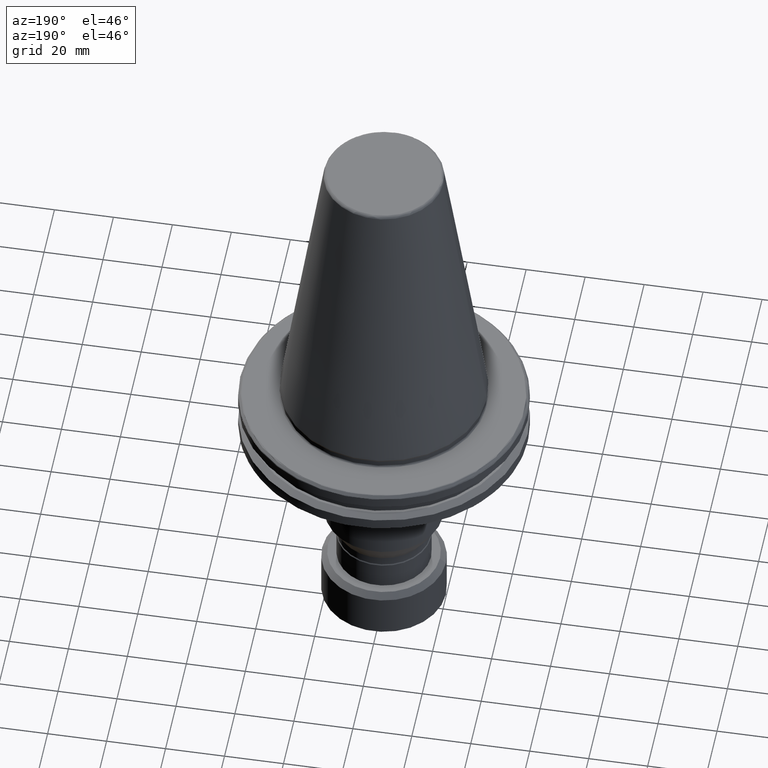
[diagram: clean part render]
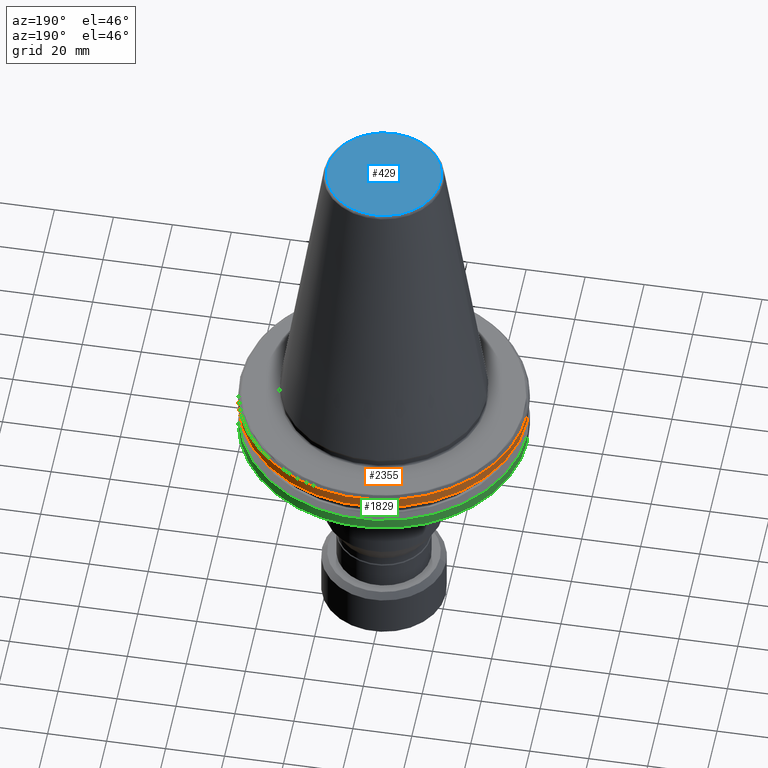
[diagram: same view with three faces highlighted in distinct colors, each labeled with its STEP entity id]
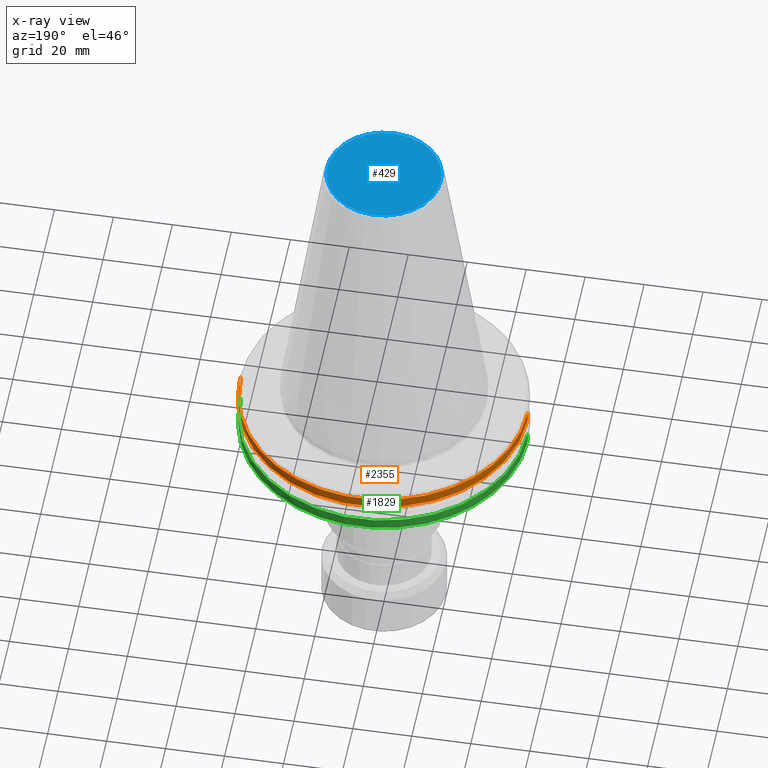
[diagram: x-ray of the same camera — body ghosted, the three highlighted faces saturated]
A machine part, auxiliary view with three faces highlighted in distinct colors.
The next image is the same camera in x-ray (body ghosted, the three faces saturated) — at least one of them is partly hidden behind the body in this view.
Their STEP definitions:

[orange] entity #2355 — the highlighted cylindrical surface (partial cylindrical patch) has radius 48.75 mm, axis along (0, 0, 1).
#78 = CARTESIAN_POINT ( 'NONE',  ( 13.39707817141273200, 46.87302845420867900, -4.365685424949238500 ) ) ;
#108 = DIRECTION ( 'NONE',  ( 0.0000000000000000000, 0.0000000000000000000, 1.000000000000000000 ) ) ;
#245 = VECTOR ( 'NONE', #494, 1000.000000000000000 ) ;
#297 = EDGE_CURVE ( 'NONE', #596, #1153, #754, .T. ) ;
#340 = EDGE_CURVE ( 'NONE', #1277, #2088, #2883, .T. ) ;
#342 = ORIENTED_EDGE ( 'NONE', *, *, #1901, .T. ) ;
#367 = EDGE_CURVE ( 'NONE', #1153, #2088, #3125, .T. ) ;
#425 = CARTESIAN_POINT ( 'NONE',  ( 0.0000000000000000000, 0.0000000000000000000, -4.365685424949236700 ) ) ;
#476 = DIRECTION ( 'NONE',  ( 1.000000000000000000, 0.0000000000000000000, 0.0000000000000000000 ) ) ;
#494 = DIRECTION ( 'NONE',  ( 0.0000000000000000000, 0.0000000000000000000, 1.000000000000000000 ) ) ;
#567 = EDGE_CURVE ( 'NONE', #1582, #596, #1555, .T. ) ;
#596 = VERTEX_POINT ( 'NONE', #2584 ) ;
#605 = LINE ( 'NONE', #918, #2829 ) ;
#702 = DIRECTION ( 'NONE',  ( 1.000000000000000000, 0.0000000000000000000, 0.0000000000000000000 ) ) ;
#725 = AXIS2_PLACEMENT_3D ( 'NONE', #874, #2746, #1161 ) ;
#754 = CIRCLE ( 'NONE', #1584, 48.75000000000000000 ) ;
#806 = CARTESIAN_POINT ( 'NONE',  ( 0.0000000000000000000, 0.0000000000000000000, 109.4760732604896600 ) ) ;
#823 = AXIS2_PLACEMENT_3D ( 'NONE', #425, #2328, #702 ) ;
#874 = CARTESIAN_POINT ( 'NONE',  ( 0.0000000000000000000, 0.0000000000000000000, -7.852404735808352000 ) ) ;
#903 = CARTESIAN_POINT ( 'NONE',  ( 48.75000000000000000, 0.0000000000000000000, -7.852404735808352000 ) ) ;
#918 = CARTESIAN_POINT ( 'NONE',  ( -48.75000000000000000, 5.970153145843347100E-015, 109.4760732604896600 ) ) ;
#1027 = ORIENTED_EDGE ( 'NONE', *, *, #367, .F. ) ;
#1147 = ORIENTED_EDGE ( 'NONE', *, *, #1504, .F. ) ;
#1153 = VERTEX_POINT ( 'NONE', #78 ) ;
#1161 = DIRECTION ( 'NONE',  ( 1.000000000000000000, 0.0000000000000000000, 0.0000000000000000000 ) ) ;
#1181 = CYLINDRICAL_SURFACE ( 'NONE', #2228, 48.75000000000000000 ) ;
#1257 = CIRCLE ( 'NONE', #725, 48.75000000000000000 ) ;
#1277 = VERTEX_POINT ( 'NONE', #2383 ) ;
#1309 = ORIENTED_EDGE ( 'NONE', *, *, #567, .F. ) ;
#1340 = FACE_OUTER_BOUND ( 'NONE', #2188, .T. ) ;
#1504 = EDGE_CURVE ( 'NONE', #2286, #1582, #1257, .T. ) ;
#1555 = LINE ( 'NONE', #2385, #245 ) ;
#1582 = VERTEX_POINT ( 'NONE', #903 ) ;
#1584 = AXIS2_PLACEMENT_3D ( 'NONE', #2241, #2255, #2023 ) ;
#1760 = AXIS2_PLACEMENT_3D ( 'NONE', #2277, #2268, #476 ) ;
#1901 = EDGE_CURVE ( 'NONE', #2286, #1277, #605, .T. ) ;
#2023 = DIRECTION ( 'NONE',  ( 1.000000000000000000, 0.0000000000000000000, 0.0000000000000000000 ) ) ;
#2046 = CARTESIAN_POINT ( 'NONE',  ( -48.75000000000000000, 5.970153145843347100E-015, -7.852404735808352000 ) ) ;
#2088 = VERTEX_POINT ( 'NONE', #2837 ) ;
#2188 = EDGE_LOOP ( 'NONE', ( #1147, #342, #2729, #1027, #3248, #1309 ) ) ;
#2228 = AXIS2_PLACEMENT_3D ( 'NONE', #806, #3200, #2426 ) ;
#2241 = CARTESIAN_POINT ( 'NONE',  ( 0.0000000000000000000, 0.0000000000000000000, -4.365685424949240300 ) ) ;
#2255 = DIRECTION ( 'NONE',  ( 0.0000000000000000000, 0.0000000000000000000, 1.000000000000000000 ) ) ;
#2268 = DIRECTION ( 'NONE',  ( -0.0000000000000000000, -0.0000000000000000000, -1.000000000000000000 ) ) ;
#2277 = CARTESIAN_POINT ( 'NONE',  ( 0.0000000000000000000, 0.0000000000000000000, -4.365685424949236700 ) ) ;
#2286 = VERTEX_POINT ( 'NONE', #2046 ) ;
#2328 = DIRECTION ( 'NONE',  ( -0.0000000000000000000, -0.0000000000000000000, 1.000000000000000000 ) ) ;
#2355 = ADVANCED_FACE ( 'NONE', ( #1340 ), #1181, .T. ) ;
#2383 = CARTESIAN_POINT ( 'NONE',  ( -48.75000000000000000, 5.970153145843347100E-015, -4.365685424949236700 ) ) ;
#2385 = CARTESIAN_POINT ( 'NONE',  ( 48.75000000000000000, 0.0000000000000000000, 109.4760732604896600 ) ) ;
#2426 = DIRECTION ( 'NONE',  ( 1.000000000000000000, 0.0000000000000000000, 0.0000000000000000000 ) ) ;
#2584 = CARTESIAN_POINT ( 'NONE',  ( 48.75000000000001400, 0.0000000000000000000, -4.365685424949240300 ) ) ;
#2729 = ORIENTED_EDGE ( 'NONE', *, *, #340, .T. ) ;
#2746 = DIRECTION ( 'NONE',  ( -0.0000000000000000000, -0.0000000000000000000, -1.000000000000000000 ) ) ;
#2829 = VECTOR ( 'NONE', #108, 1000.000000000000000 ) ;
#2837 = CARTESIAN_POINT ( 'NONE',  ( -13.51915856623725200, 46.83796378645141100, -4.365685424949236700 ) ) ;
#2883 = CIRCLE ( 'NONE', #1760, 48.75000000000000000 ) ;
#3125 = CIRCLE ( 'NONE', #823, 48.75000000000000700 ) ;
#3200 = DIRECTION ( 'NONE',  ( 0.0000000000000000000, 0.0000000000000000000, 1.000000000000000000 ) ) ;
#3248 = ORIENTED_EDGE ( 'NONE', *, *, #297, .F. ) ;

[blue] entity #429 — the highlighted planar face has unit normal (0, 0, 1).
#374 = EDGE_CURVE ( 'NONE', #1345, #485, #993, .T. ) ;
#429 = ADVANCED_FACE ( 'NONE', ( #537 ), #2984, .T. ) ;
#477 = CARTESIAN_POINT ( 'NONE',  ( -19.22157500054538900, 2.378200593091449400E-015, 101.7500000000000000 ) ) ;
#485 = VERTEX_POINT ( 'NONE', #477 ) ;
#502 = ORIENTED_EDGE ( 'NONE', *, *, #374, .F. ) ;
#537 = FACE_OUTER_BOUND ( 'NONE', #1049, .T. ) ;
#817 = CARTESIAN_POINT ( 'NONE',  ( 19.22157500054538900, 0.0000000000000000000, 101.7500000000000000 ) ) ;
#973 = CARTESIAN_POINT ( 'NONE',  ( -19.22157500054538900, 2.378200593091449400E-015, 101.7500000000000000 ) ) ;
#993 =( BOUNDED_CURVE ( )  B_SPLINE_CURVE ( 3, ( #2578, #2065, #3345, #973 ),
 .UNSPECIFIED., .F., .F. ) 
 B_SPLINE_CURVE_WITH_KNOTS ( ( 4, 4 ),
 ( 0.0000000000000000000, 1.000000000000000000 ),
 .UNSPECIFIED. ) 
 CURVE ( )  GEOMETRIC_REPRESENTATION_ITEM ( )  RATIONAL_B_SPLINE_CURVE ( ( 1.000000000000000000, 0.3333333333333333700, 0.3333333333333333700, 1.000000000000000000 ) ) 
 REPRESENTATION_ITEM ( '' )  );
#1049 = EDGE_LOOP ( 'NONE', ( #1417, #502 ) ) ;
#1345 = VERTEX_POINT ( 'NONE', #2137 ) ;
#1416 = CARTESIAN_POINT ( 'NONE',  ( 0.0000000000000000000, 0.0000000000000000000, 101.7500000000000000 ) ) ;
#1417 = ORIENTED_EDGE ( 'NONE', *, *, #2813, .F. ) ;
#1452 =( BOUNDED_CURVE ( )  B_SPLINE_CURVE ( 3, ( #2677, #2181, #2439, #817 ),
 .UNSPECIFIED., .F., .T. ) 
 B_SPLINE_CURVE_WITH_KNOTS ( ( 4, 4 ),
 ( 0.0000000000000000000, 1.000000000000000000 ),
 .UNSPECIFIED. ) 
 CURVE ( )  GEOMETRIC_REPRESENTATION_ITEM ( )  RATIONAL_B_SPLINE_CURVE ( ( 1.000000000000000000, 0.3333333333333333700, 0.3333333333333333700, 1.000000000000000000 ) ) 
 REPRESENTATION_ITEM ( '' )  );
#1701 = DIRECTION ( 'NONE',  ( 1.000000000000000000, 0.0000000000000000000, -0.0000000000000000000 ) ) ;
#2065 = CARTESIAN_POINT ( 'NONE',  ( 19.22157500054538900, -38.44315000109077100, 101.7500000000000000 ) ) ;
#2137 = CARTESIAN_POINT ( 'NONE',  ( 19.22157500054538900, 0.0000000000000000000, 101.7500000000000000 ) ) ;
#2181 = CARTESIAN_POINT ( 'NONE',  ( -19.22157500054538600, 38.44315000109077100, 101.7500000000000000 ) ) ;
#2439 = CARTESIAN_POINT ( 'NONE',  ( 19.22157500054538900, 38.44315000109077100, 101.7500000000000000 ) ) ;
#2578 = CARTESIAN_POINT ( 'NONE',  ( 19.22157500054538900, 0.0000000000000000000, 101.7500000000000000 ) ) ;
#2677 = CARTESIAN_POINT ( 'NONE',  ( -19.22157500054538900, 2.378200593091449400E-015, 101.7500000000000000 ) ) ;
#2813 = EDGE_CURVE ( 'NONE', #485, #1345, #1452, .T. ) ;
#2984 = PLANE ( 'NONE',  #3164 ) ;
#3164 = AXIS2_PLACEMENT_3D ( 'NONE', #1416, #3247, #1701 ) ;
#3247 = DIRECTION ( 'NONE',  ( 0.0000000000000000000, 0.0000000000000000000, 1.000000000000000000 ) ) ;
#3345 = CARTESIAN_POINT ( 'NONE',  ( -19.22157500054538900, -38.44315000109077100, 101.7500000000000000 ) ) ;

[green] entity #1829 — the highlighted cylindrical surface (partial cylindrical patch) has radius 48.75 mm, axis along (0, 0, 1).
#12 = CARTESIAN_POINT ( 'NONE',  ( 13.39707817141273300, 46.87302845420868600, -17.93431457505077400 ) ) ;
#72 = DIRECTION ( 'NONE',  ( 1.000000000000000000, 0.0000000000000000000, 0.0000000000000000000 ) ) ;
#122 = AXIS2_PLACEMENT_3D ( 'NONE', #1048, #2901, #1322 ) ;
#135 = DIRECTION ( 'NONE',  ( 0.0000000000000000000, 0.0000000000000000000, 1.000000000000000000 ) ) ;
#216 = CARTESIAN_POINT ( 'NONE',  ( -48.75000000000000000, 5.970153145843347100E-015, -17.93431457505077700 ) ) ;
#230 = CARTESIAN_POINT ( 'NONE',  ( 48.75000000000000000, 0.0000000000000000000, -17.93431457505077700 ) ) ;
#326 = DIRECTION ( 'NONE',  ( 0.0000000000000000000, 0.0000000000000000000, 1.000000000000000000 ) ) ;
#379 = CARTESIAN_POINT ( 'NONE',  ( 0.0000000000000000000, 0.0000000000000000000, -14.34759526419164500 ) ) ;
#435 = ORIENTED_EDGE ( 'NONE', *, *, #2545, .T. ) ;
#539 = VERTEX_POINT ( 'NONE', #230 ) ;
#547 = VERTEX_POINT ( 'NONE', #1308 ) ;
#548 = EDGE_CURVE ( 'NONE', #2366, #634, #1620, .T. ) ;
#590 = AXIS2_PLACEMENT_3D ( 'NONE', #379, #2283, #659 ) ;
#597 = CARTESIAN_POINT ( 'NONE',  ( 0.0000000000000000000, 0.0000000000000000000, 109.4760732604896600 ) ) ;
#634 = VERTEX_POINT ( 'NONE', #216 ) ;
#659 = DIRECTION ( 'NONE',  ( 1.000000000000000000, 0.0000000000000000000, 0.0000000000000000000 ) ) ;
#670 = EDGE_LOOP ( 'NONE', ( #2525, #435, #1871, #2817, #1656, #785 ) ) ;
#697 = CIRCLE ( 'NONE', #590, 48.75000000000000000 ) ;
#785 = ORIENTED_EDGE ( 'NONE', *, *, #3080, .T. ) ;
#803 = CARTESIAN_POINT ( 'NONE',  ( 0.0000000000000000000, 0.0000000000000000000, -17.93431457505077700 ) ) ;
#870 = EDGE_CURVE ( 'NONE', #539, #547, #2301, .T. ) ;
#876 = DIRECTION ( 'NONE',  ( -0.0000000000000000000, -0.0000000000000000000, 1.000000000000000000 ) ) ;
#898 = CIRCLE ( 'NONE', #1541, 48.75000000000000000 ) ;
#936 = VECTOR ( 'NONE', #2768, 1000.000000000000000 ) ;
#1048 = CARTESIAN_POINT ( 'NONE',  ( 0.0000000000000000000, 0.0000000000000000000, -17.93431457505077700 ) ) ;
#1081 = DIRECTION ( 'NONE',  ( 1.000000000000000000, 0.0000000000000000000, 0.0000000000000000000 ) ) ;
#1308 = CARTESIAN_POINT ( 'NONE',  ( 48.75000000000000000, 5.970153145843347100E-015, -14.34759526419164500 ) ) ;
#1322 = DIRECTION ( 'NONE',  ( 1.000000000000000000, 0.0000000000000000000, 0.0000000000000000000 ) ) ;
#1407 = EDGE_CURVE ( 'NONE', #539, #3004, #898, .T. ) ;
#1418 = CIRCLE ( 'NONE', #3325, 48.75000000000000700 ) ;
#1541 = AXIS2_PLACEMENT_3D ( 'NONE', #803, #2673, #1081 ) ;
#1566 = CARTESIAN_POINT ( 'NONE',  ( -48.75000000000000000, 0.0000000000000000000, -14.34759526419164500 ) ) ;
#1620 = CIRCLE ( 'NONE', #122, 48.75000000000000000 ) ;
#1656 = ORIENTED_EDGE ( 'NONE', *, *, #1407, .T. ) ;
#1785 = CARTESIAN_POINT ( 'NONE',  ( -48.75000000000000000, 5.970153145843347100E-015, 109.4760732604896600 ) ) ;
#1827 = FACE_OUTER_BOUND ( 'NONE', #670, .T. ) ;
#1829 = ADVANCED_FACE ( 'NONE', ( #1827 ), #3169, .T. ) ;
#1871 = ORIENTED_EDGE ( 'NONE', *, *, #1905, .T. ) ;
#1873 = AXIS2_PLACEMENT_3D ( 'NONE', #597, #326, #72 ) ;
#1905 = EDGE_CURVE ( 'NONE', #2567, #547, #697, .T. ) ;
#1924 = CARTESIAN_POINT ( 'NONE',  ( -13.51915856623725000, 46.83796378645141100, -17.93431457505077400 ) ) ;
#1994 = CARTESIAN_POINT ( 'NONE',  ( 48.75000000000000000, 0.0000000000000000000, 109.4760732604896600 ) ) ;
#2283 = DIRECTION ( 'NONE',  ( -0.0000000000000000000, -0.0000000000000000000, -1.000000000000000000 ) ) ;
#2301 = LINE ( 'NONE', #1994, #936 ) ;
#2366 = VERTEX_POINT ( 'NONE', #1924 ) ;
#2488 = CARTESIAN_POINT ( 'NONE',  ( 0.0000000000000000000, 0.0000000000000000000, -17.93431457505077700 ) ) ;
#2525 = ORIENTED_EDGE ( 'NONE', *, *, #548, .T. ) ;
#2545 = EDGE_CURVE ( 'NONE', #634, #2567, #3048, .T. ) ;
#2567 = VERTEX_POINT ( 'NONE', #1566 ) ;
#2673 = DIRECTION ( 'NONE',  ( 0.0000000000000000000, 0.0000000000000000000, 1.000000000000000000 ) ) ;
#2747 = DIRECTION ( 'NONE',  ( 1.000000000000000000, 0.0000000000000000000, 0.0000000000000000000 ) ) ;
#2768 = DIRECTION ( 'NONE',  ( 0.0000000000000000000, 0.0000000000000000000, 1.000000000000000000 ) ) ;
#2817 = ORIENTED_EDGE ( 'NONE', *, *, #870, .F. ) ;
#2901 = DIRECTION ( 'NONE',  ( 0.0000000000000000000, 0.0000000000000000000, 1.000000000000000000 ) ) ;
#3004 = VERTEX_POINT ( 'NONE', #12 ) ;
#3028 = VECTOR ( 'NONE', #135, 1000.000000000000000 ) ;
#3048 = LINE ( 'NONE', #1785, #3028 ) ;
#3080 = EDGE_CURVE ( 'NONE', #3004, #2366, #1418, .T. ) ;
#3169 = CYLINDRICAL_SURFACE ( 'NONE', #1873, 48.75000000000000000 ) ;
#3325 = AXIS2_PLACEMENT_3D ( 'NONE', #2488, #876, #2747 ) ;